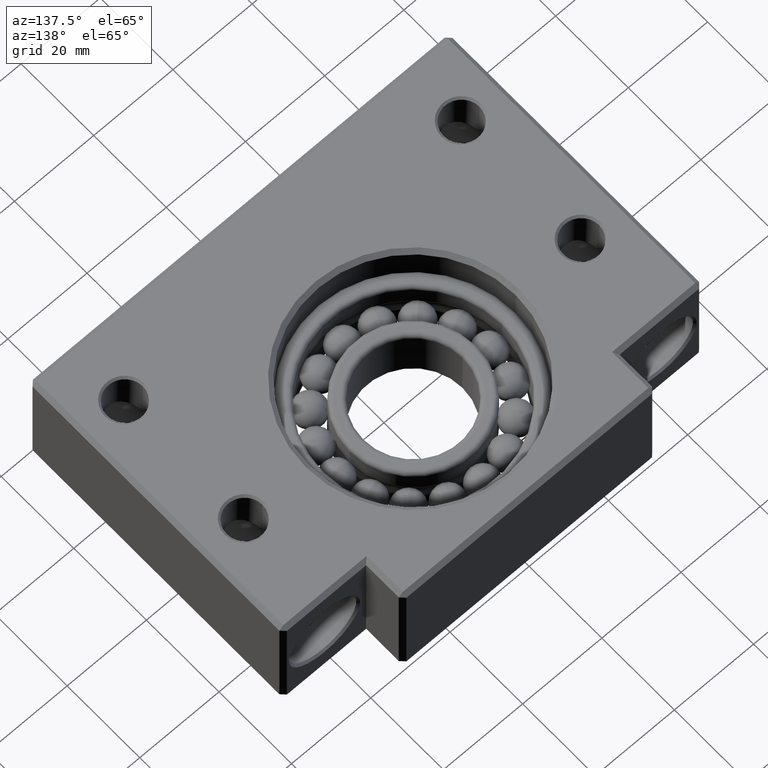
[diagram: clean part render]
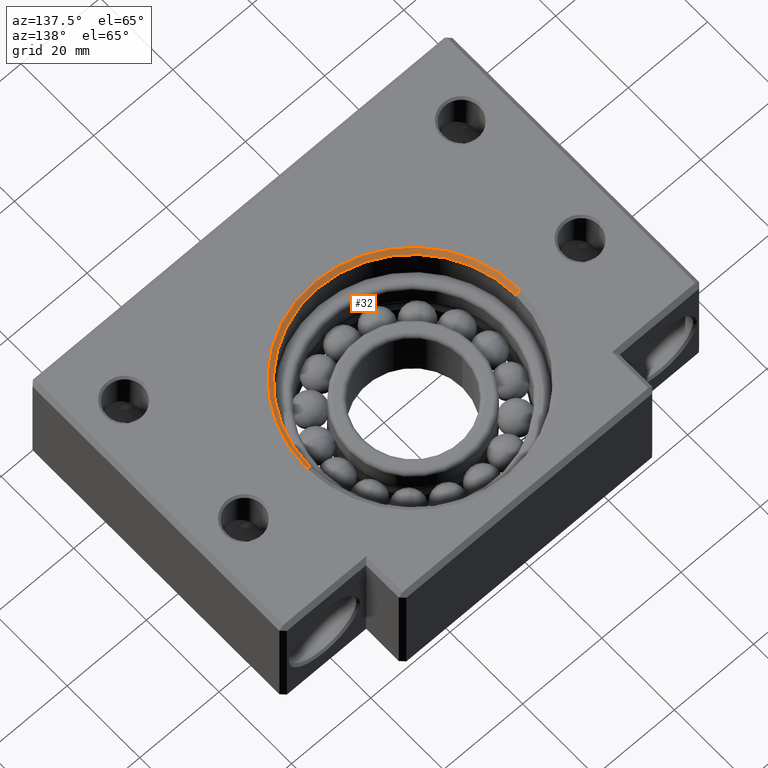
[diagram: same view with one face highlighted and labeled with its STEP entity id]
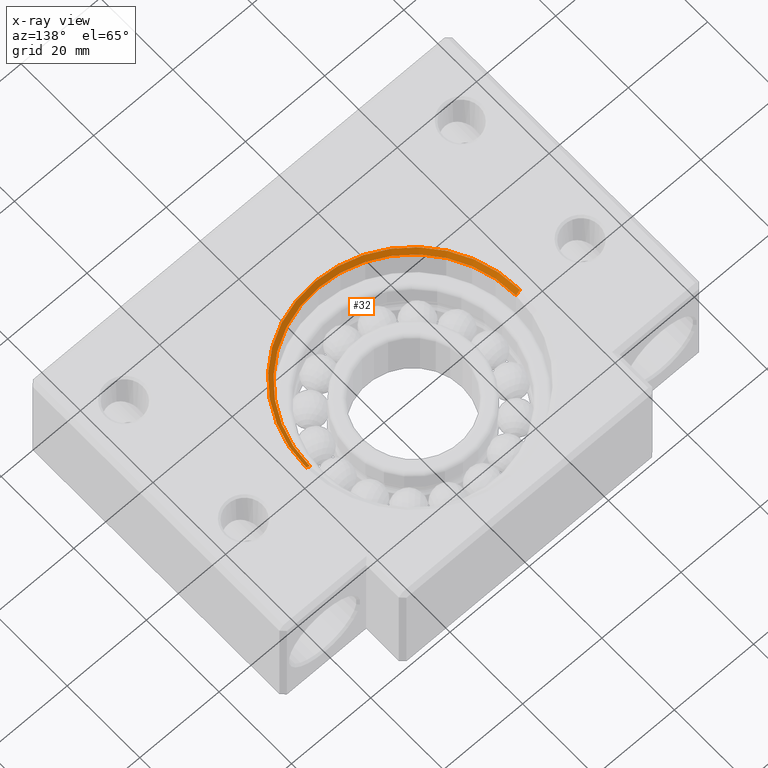
[diagram: x-ray of the same camera — body ghosted, the highlighted face saturated]
A machine part, auxiliary view. The second image highlights one B-rep face of the part: STEP entity #32.
The next image is the same camera in x-ray: the body ghosted, the highlighted face saturated — about 0% of this face is hidden behind the body in this view.
In plain terms, the highlighted conical surface has half-angle 45 deg.
Its self-contained STEP definition (entity closure, byte-faithful):
#26 = EDGE_LOOP ( 'NONE', ( #48, #53, #49, #54 ) ) ;
#32 = ADVANCED_FACE ( 'NONE', ( #1698 ), #1691, .F. ) ;
#46 = VERTEX_POINT ( 'NONE', #1685 ) ;
#48 = ORIENTED_EDGE ( 'NONE', *, *, #63, .F. ) ;
#49 = ORIENTED_EDGE ( 'NONE', *, *, #52, .F. ) ;
#51 = VERTEX_POINT ( 'NONE', #1750 ) ;
#52 = EDGE_CURVE ( 'NONE', #46, #60, #1749, .T. ) ;
#53 = ORIENTED_EDGE ( 'NONE', *, *, #70, .T. ) ;
#54 = ORIENTED_EDGE ( 'NONE', *, *, #62, .F. ) ;
#60 = VERTEX_POINT ( 'NONE', #1784 ) ;
#62 = EDGE_CURVE ( 'NONE', #51, #46, #1777, .T. ) ;
#63 = EDGE_CURVE ( 'NONE', #72, #51, #1773, .T. ) ;
#70 = EDGE_CURVE ( 'NONE', #72, #60, #1760, .T. ) ;
#72 = VERTEX_POINT ( 'NONE', #1755 ) ;
#1685 = CARTESIAN_POINT ( 'NONE',  ( 27.00000000000000400, 48.00000000000000000, 15.00000000000000000 ) ) ;
#1688 = DIRECTION ( 'NONE',  ( 1.000000000000000000, 0.0000000000000000000, 0.0000000000000000000 ) ) ;
#1689 = DIRECTION ( 'NONE',  ( 0.0000000000000000000, 0.0000000000000000000, 1.000000000000000000 ) ) ;
#1690 = AXIS2_PLACEMENT_3D ( 'NONE', #1693, #1689, #1688 ) ;
#1691 = CONICAL_SURFACE ( 'NONE', #1690, 26.00000000000000400, 0.7853981633974535000 ) ;
#1693 = CARTESIAN_POINT ( 'NONE',  ( 1.124572892961660300E-014, 48.00000000000000000, 14.00000000000002000 ) ) ;
#1698 = FACE_OUTER_BOUND ( 'NONE', #26, .T. ) ;
#1741 = DIRECTION ( 'NONE',  ( 1.000000000000000000, 0.0000000000000000000, 0.0000000000000000000 ) ) ;
#1742 = DIRECTION ( 'NONE',  ( 0.0000000000000000000, -0.0000000000000000000, -1.000000000000000000 ) ) ;
#1743 = CARTESIAN_POINT ( 'NONE',  ( 1.124572892961660300E-014, 48.00000000000000000, 15.00000000000000000 ) ) ;
#1744 = AXIS2_PLACEMENT_3D ( 'NONE', #1743, #1742, #1741 ) ;
#1749 = CIRCLE ( 'NONE', #1744, 26.99999999999999300 ) ;
#1750 = CARTESIAN_POINT ( 'NONE',  ( 26.00000000000001400, 48.00000000000000000, 14.00000000000002000 ) ) ;
#1755 = CARTESIAN_POINT ( 'NONE',  ( -25.99999999999999300, 48.00000000000000000, 14.00000000000002000 ) ) ;
#1757 = DIRECTION ( 'NONE',  ( -0.7071067811865512400, 8.659274570719402300E-017, 0.7071067811865439100 ) ) ;
#1758 = VECTOR ( 'NONE', #1757, 1000.000000000000000 ) ;
#1759 = CARTESIAN_POINT ( 'NONE',  ( -25.99999999999999300, 48.00000000000000000, 14.00000000000002000 ) ) ;
#1760 = LINE ( 'NONE', #1759, #1758 ) ;
#1769 = DIRECTION ( 'NONE',  ( 1.000000000000000000, 0.0000000000000000000, 0.0000000000000000000 ) ) ;
#1770 = DIRECTION ( 'NONE',  ( 0.0000000000000000000, 0.0000000000000000000, 1.000000000000000000 ) ) ;
#1771 = CARTESIAN_POINT ( 'NONE',  ( 1.124572892961660300E-014, 48.00000000000000000, 14.00000000000002000 ) ) ;
#1772 = AXIS2_PLACEMENT_3D ( 'NONE', #1771, #1770, #1769 ) ;
#1773 = CIRCLE ( 'NONE', #1772, 26.00000000000000400 ) ;
#1774 = DIRECTION ( 'NONE',  ( 0.7071067811865512400, 0.0000000000000000000, 0.7071067811865439100 ) ) ;
#1775 = VECTOR ( 'NONE', #1774, 1000.000000000000000 ) ;
#1776 = CARTESIAN_POINT ( 'NONE',  ( 26.00000000000001400, 48.00000000000000000, 14.00000000000002000 ) ) ;
#1777 = LINE ( 'NONE', #1776, #1775 ) ;
#1784 = CARTESIAN_POINT ( 'NONE',  ( -26.99999999999998200, 48.00000000000000000, 15.00000000000000000 ) ) ;